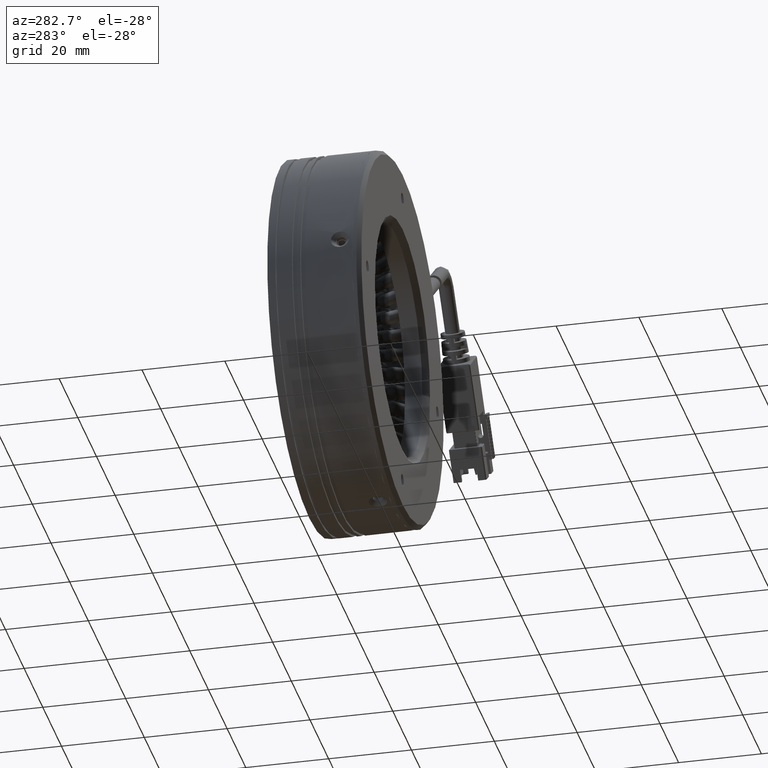
[diagram: clean part render]
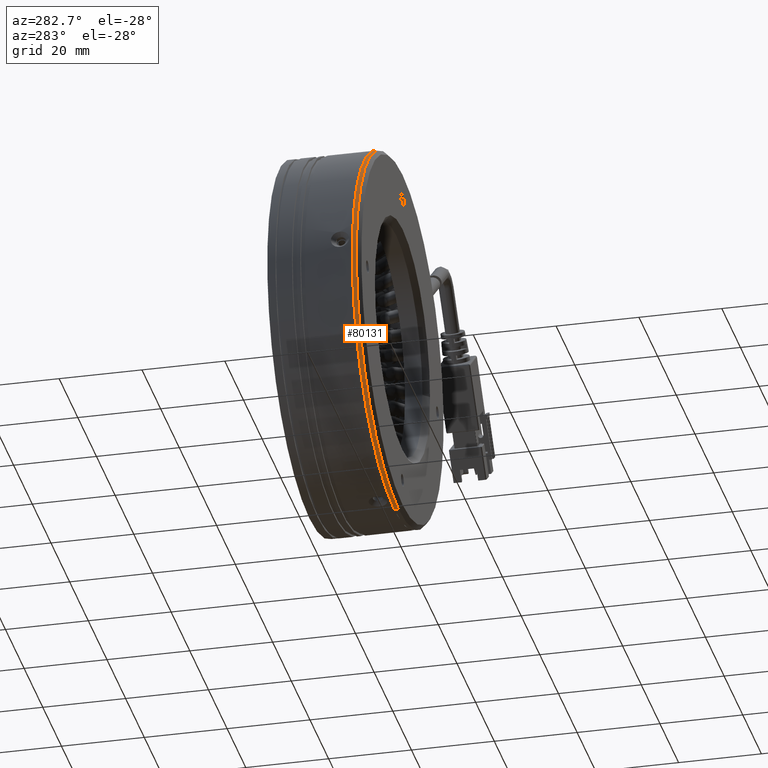
[diagram: same view with one face highlighted and labeled with its STEP entity id]
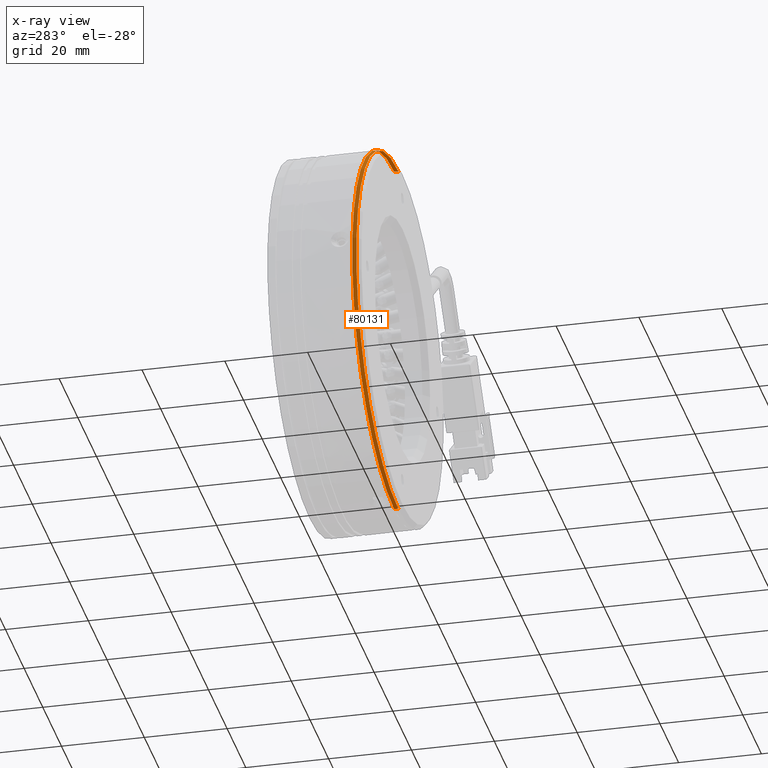
[diagram: x-ray of the same camera — body ghosted, the highlighted face saturated]
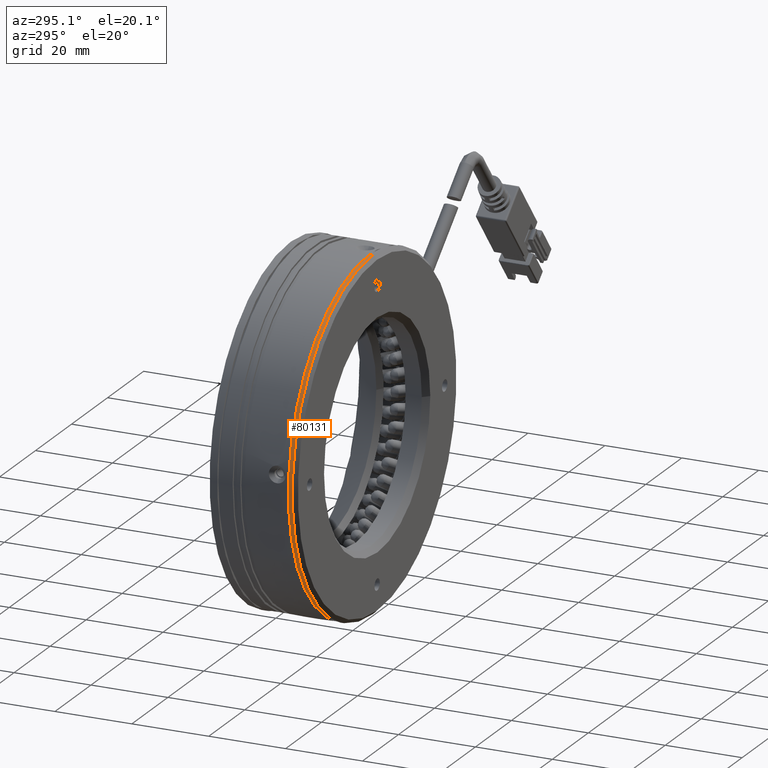
[diagram: same view with one face highlighted and labeled with its STEP entity id]
A machine part, auxiliary view. The second image highlights one B-rep face of the part: STEP entity #80131.
The next image is the same camera in x-ray: the body ghosted, the highlighted face saturated — about 0% of this face is hidden behind the body in this view.
A second angle (auxiliary view) of the same face is appended — the face is thin or edge-on in the first view.
In plain terms, the highlighted cylindrical surface (partial cylindrical patch) has radius 45 mm, axis along (-0, -1, 0).
Its self-contained STEP definition (entity closure, byte-faithful):
#648 = AXIS2_PLACEMENT_3D ( 'NONE', #124124, #72387, #114111 ) ;
#3182 = DIRECTION ( 'NONE',  ( -9.367506770274758300E-017, -1.000000000000000000, 5.200010849845536800E-033 ) ) ;
#4777 = DIRECTION ( 'NONE',  ( -9.367506770274758300E-017, -1.000000000000000000, 5.200010849845536800E-033 ) ) ;
#7671 = LINE ( 'NONE', #67174, #59800 ) ;
#8166 = CARTESIAN_POINT ( 'NONE',  ( -53.99004085520083900, 17.47876601230222700, -3.797922368083179700 ) ) ;
#10346 = CIRCLE ( 'NONE', #132543, 45.00000000000000000 ) ;
#13204 = CARTESIAN_POINT ( 'NONE',  ( -53.99004085520083900, 17.47876601230222700, 41.20207763191682200 ) ) ;
#18644 = DIRECTION ( 'NONE',  ( 0.0000000000000000000, 0.0000000000000000000, -1.000000000000000000 ) ) ;
#21107 = CIRCLE ( 'NONE', #115665, 44.99999999999999300 ) ;
#21772 = ORIENTED_EDGE ( 'NONE', *, *, #67791, .T. ) ;
#41270 = DIRECTION ( 'NONE',  ( -9.367506770274758300E-017, -1.000000000000000000, 5.200010849845536800E-033 ) ) ;
#42247 = CYLINDRICAL_SURFACE ( 'NONE', #648, 45.00000000000000000 ) ;
#43801 = VERTEX_POINT ( 'NONE', #101490 ) ;
#46153 = VERTEX_POINT ( 'NONE', #104665 ) ;
#49500 = VERTEX_POINT ( 'NONE', #13204 ) ;
#59800 = VECTOR ( 'NONE', #4777, 1000.000000000000000 ) ;
#65582 = CARTESIAN_POINT ( 'NONE',  ( -53.99004085520083900, 18.47876601230220900, -3.797922368083179700 ) ) ;
#67174 = CARTESIAN_POINT ( 'NONE',  ( -53.99004085520084600, -6.436818150555594400, -48.79792236808317800 ) ) ;
#67791 = EDGE_CURVE ( 'NONE', #43801, #100592, #10346, .T. ) ;
#68559 = LINE ( 'NONE', #113991, #89668 ) ;
#71370 = EDGE_CURVE ( 'NONE', #100592, #46153, #7671, .T. ) ;
#72189 = ORIENTED_EDGE ( 'NONE', *, *, #119043, .F. ) ;
#72387 = DIRECTION ( 'NONE',  ( -9.367506770274758300E-017, -1.000000000000000000, 5.200010849845536800E-033 ) ) ;
#76048 = DIRECTION ( 'NONE',  ( 0.0000000000000000000, 0.0000000000000000000, 1.000000000000000000 ) ) ;
#80131 = ADVANCED_FACE ( 'NONE', ( #135049 ), #42247, .T. ) ;
#80979 = DIRECTION ( 'NONE',  ( -9.367506770274758300E-017, -1.000000000000000000, 5.200010849845536800E-033 ) ) ;
#85095 = ORIENTED_EDGE ( 'NONE', *, *, #88155, .F. ) ;
#88155 = EDGE_CURVE ( 'NONE', #43801, #49500, #68559, .T. ) ;
#88483 = ORIENTED_EDGE ( 'NONE', *, *, #71370, .T. ) ;
#89668 = VECTOR ( 'NONE', #41270, 1000.000000000000000 ) ;
#100592 = VERTEX_POINT ( 'NONE', #131220 ) ;
#101490 = CARTESIAN_POINT ( 'NONE',  ( -53.99004085520083900, 18.47876601230220900, 41.20207763191682200 ) ) ;
#104665 = CARTESIAN_POINT ( 'NONE',  ( -53.99004085520084600, 17.47876601230222700, -48.79792236808317800 ) ) ;
#113796 = EDGE_LOOP ( 'NONE', ( #21772, #88483, #72189, #85095 ) ) ;
#113991 = CARTESIAN_POINT ( 'NONE',  ( -53.99004085520083900, -6.436818150555594400, 41.20207763191682200 ) ) ;
#114111 = DIRECTION ( 'NONE',  ( 0.0000000000000000000, 0.0000000000000000000, 1.000000000000000000 ) ) ;
#115665 = AXIS2_PLACEMENT_3D ( 'NONE', #8166, #80979, #18644 ) ;
#119043 = EDGE_CURVE ( 'NONE', #49500, #46153, #21107, .T. ) ;
#124124 = CARTESIAN_POINT ( 'NONE',  ( -53.99004085520083900, -6.436818150555594400, -3.797922368083179700 ) ) ;
#131220 = CARTESIAN_POINT ( 'NONE',  ( -53.99004085520084600, 18.47876601230220900, -48.79792236808317800 ) ) ;
#132543 = AXIS2_PLACEMENT_3D ( 'NONE', #65582, #3182, #76048 ) ;
#135049 = FACE_OUTER_BOUND ( 'NONE', #113796, .T. ) ;